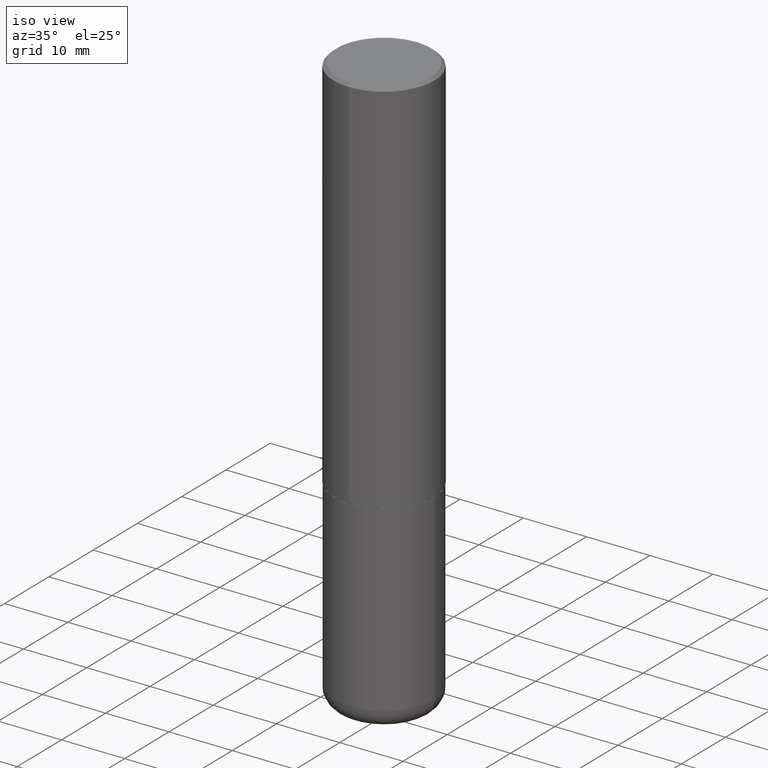
[diagram: clean part render]
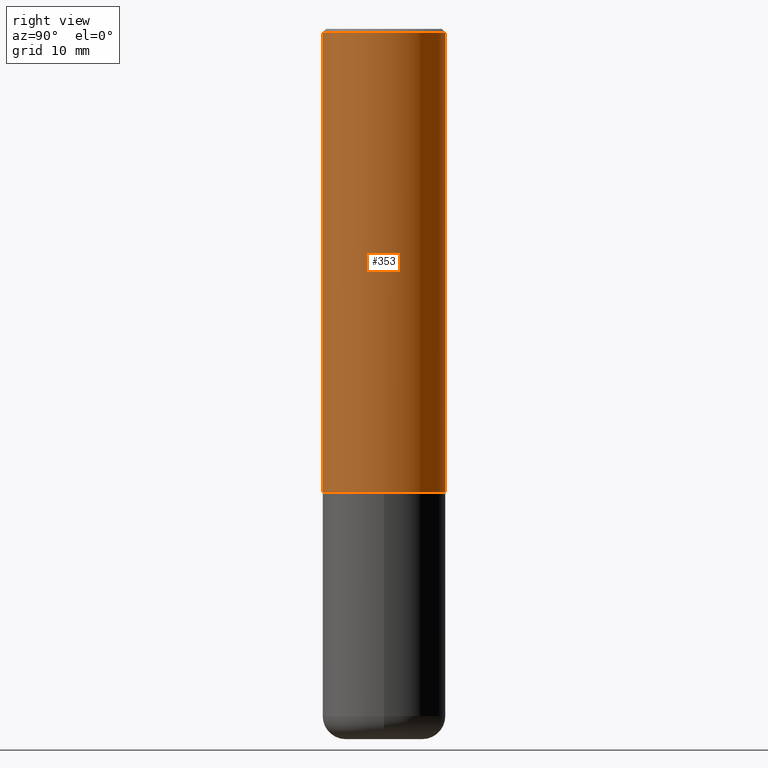
[diagram: tour spotlight — one face highlighted and labeled with its STEP entity id]
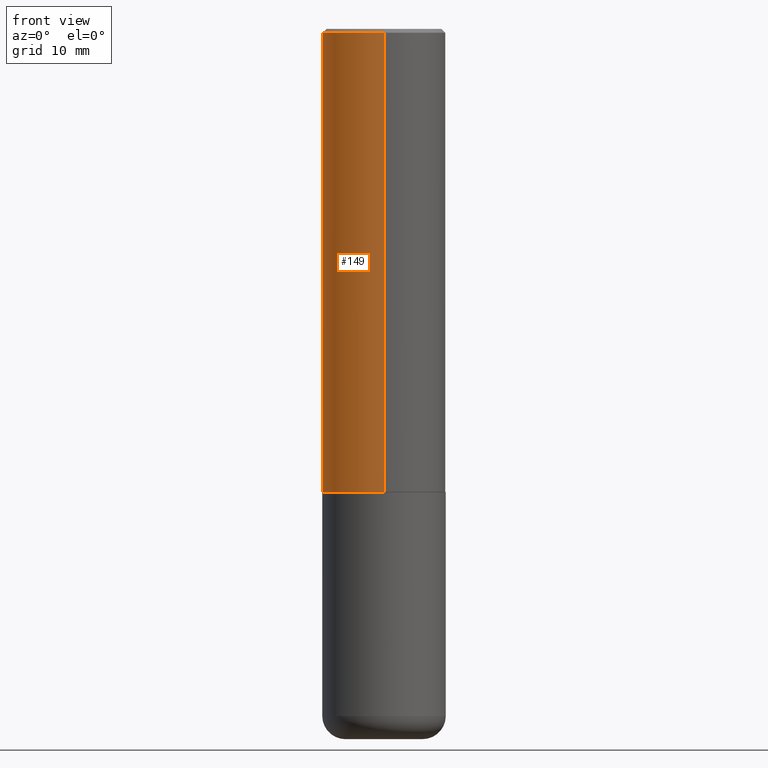
[diagram: tour spotlight — one face highlighted and labeled with its STEP entity id]
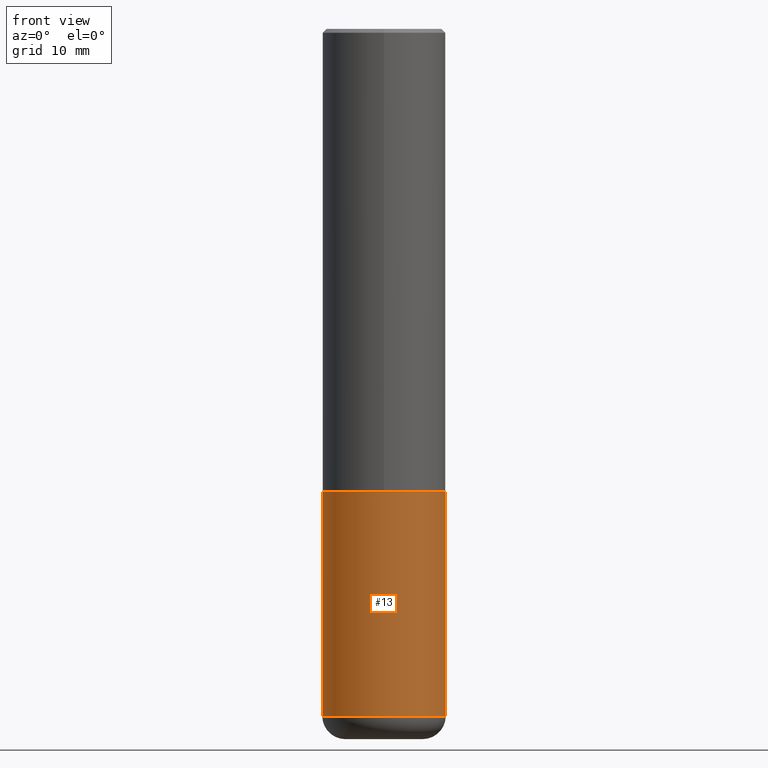
[diagram: tour spotlight — one face highlighted and labeled with its STEP entity id]
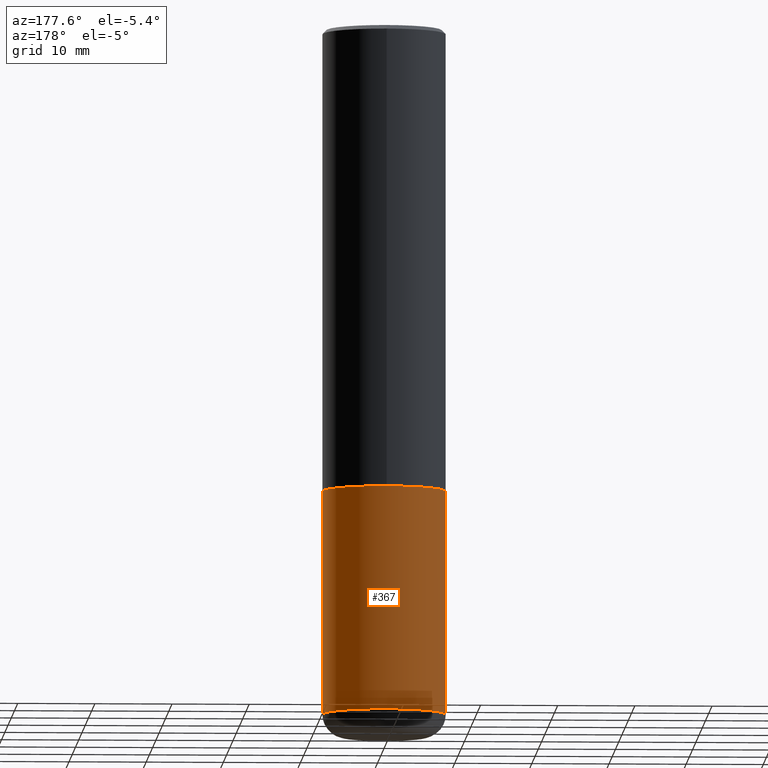
[diagram: tour spotlight — one face highlighted and labeled with its STEP entity id]
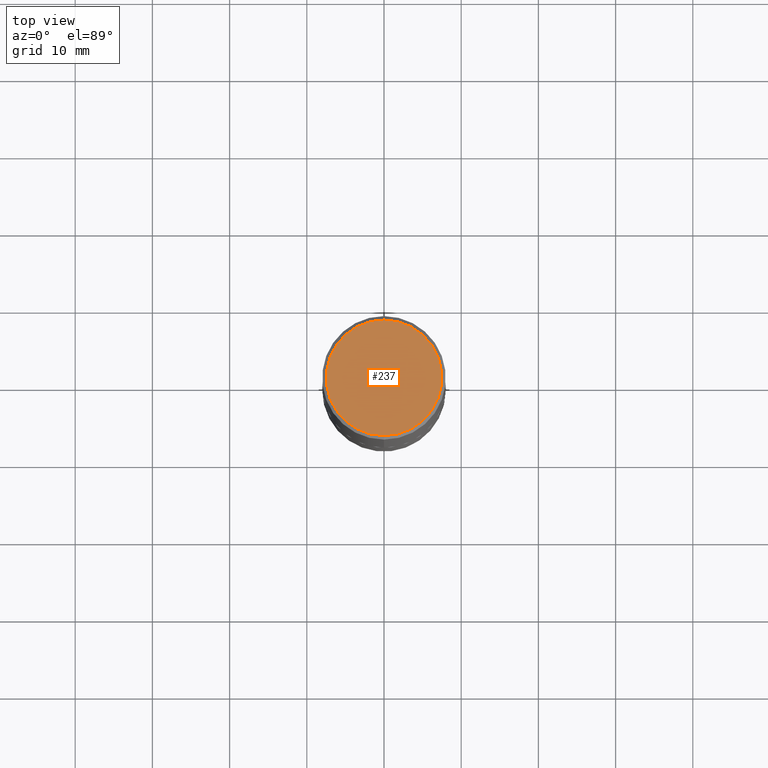
[diagram: tour spotlight — one face highlighted and labeled with its STEP entity id]
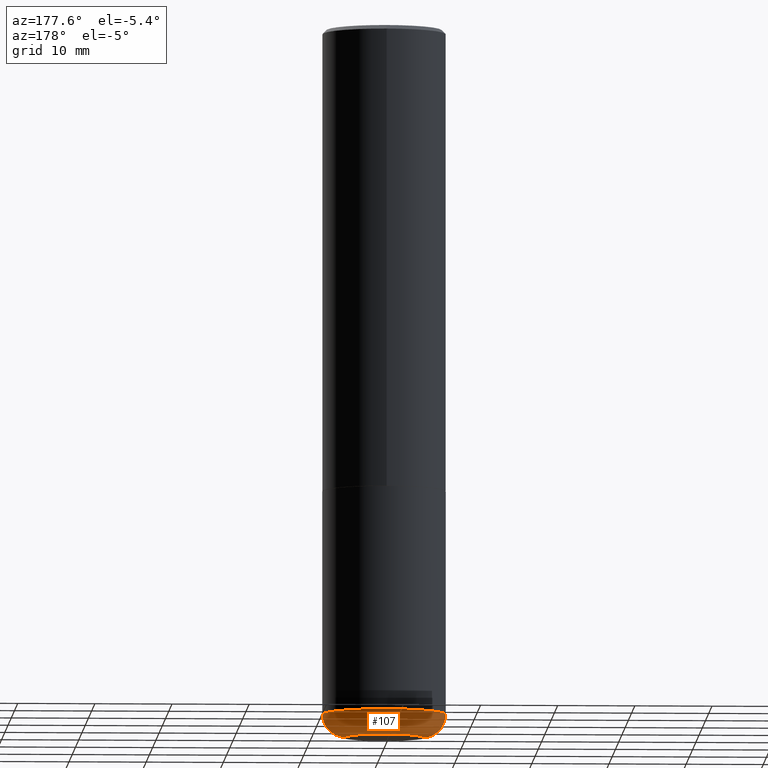
[diagram: tour spotlight — one face highlighted and labeled with its STEP entity id]
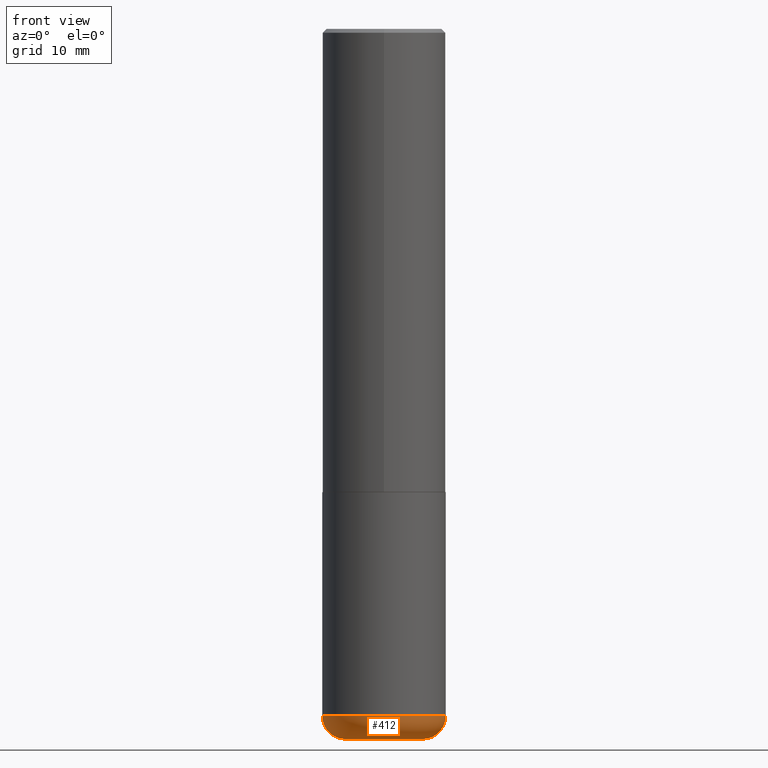
[diagram: tour spotlight — one face highlighted and labeled with its STEP entity id]
A machine part: a face-by-face anatomy tour. The part has 14 B-rep faces; the first image is the clean iso view, then the 7 largest visible faces are spotlighted one at a time (largest first), each with its STEP entity span.

Face 1 — right view, entity #353. In plain terms, the highlighted cylindrical surface (partial cylindrical patch) has radius 7.9997 mm, axis along (-0, 0, 1).
Definition (entity closure, byte-faithful):
#6 = CARTESIAN_POINT ( 'NONE',  ( -2.199284095337233467E-15, -0.3149500000000085564, -2.361199999999998411 ) ) ;
#28 = VERTEX_POINT ( 'NONE', #371 ) ;
#42 = ORIENTED_EDGE ( 'NONE', *, *, #79, .F. ) ;
#44 = ORIENTED_EDGE ( 'NONE', *, *, #268, .T. ) ;
#53 = CIRCLE ( 'NONE', #151, 0.3149500000000002853 ) ;
#79 = EDGE_CURVE ( 'NONE', #225, #302, #194, .T. ) ;
#81 = ORIENTED_EDGE ( 'NONE', *, *, #184, .F. ) ;
#114 = LINE ( 'NONE', #294, #281 ) ;
#122 = CARTESIAN_POINT ( 'NONE',  ( 2.237854346276435985E-15, 0.3149500000000001743, -1.100667708753224483E-15 ) ) ;
#123 = FACE_OUTER_BOUND ( 'NONE', #161, .T. ) ;
#150 = DIRECTION ( 'NONE',  ( -2.443194745834749563E-29, 3.494737922696377105E-15, 1.000000000000000000 ) ) ;
#151 = AXIS2_PLACEMENT_3D ( 'NONE', #391, #355, #203 ) ;
#161 = EDGE_LOOP ( 'NONE', ( #44, #167, #42, #81 ) ) ;
#167 = ORIENTED_EDGE ( 'NONE', *, *, #373, .T. ) ;
#184 = EDGE_CURVE ( 'NONE', #267, #225, #114, .T. ) ;
#193 = DIRECTION ( 'NONE',  ( -6.982962677686265922E-15, -1.000000000000000000, 3.496670018878889100E-15 ) ) ;
#194 = CIRCLE ( 'NONE', #368, 0.3149500000000000077 ) ;
#203 = DIRECTION ( 'NONE',  ( -6.982962677686265922E-15, -1.000000000000000000, 3.469564049740290009E-15 ) ) ;
#209 = LINE ( 'NONE', #122, #410 ) ;
#217 = DIRECTION ( 'NONE',  ( -2.443194745834749283E-29, 3.494737922696377105E-15, 1.000000000000000000 ) ) ;
#225 = VERTEX_POINT ( 'NONE', #330 ) ;
#239 = DIRECTION ( 'NONE',  ( -2.443194745834749283E-29, 3.494737922696377105E-15, 1.000000000000000000 ) ) ;
#247 = CARTESIAN_POINT ( 'NONE',  ( 0.000000000000000000, 0.000000000000000000, 0.000000000000000000 ) ) ;
#267 = VERTEX_POINT ( 'NONE', #6 ) ;
#268 = EDGE_CURVE ( 'NONE', #267, #28, #53, .T. ) ;
#281 = VECTOR ( 'NONE', #388, 39.37007874015748143 ) ;
#294 = CARTESIAN_POINT ( 'NONE',  ( -2.199284095337290265E-15, -0.3149500000000001743, 1.100667708753224483E-15 ) ) ;
#302 = VERTEX_POINT ( 'NONE', #338 ) ;
#330 = CARTESIAN_POINT ( 'NONE',  ( -2.160713844398143363E-15, -0.3149500000000000632, -0.01999999999999896652 ) ) ;
#332 = AXIS2_PLACEMENT_3D ( 'NONE', #247, #239, #374 ) ;
#333 = CYLINDRICAL_SURFACE ( 'NONE', #332, 0.3149500000000001743 ) ;
#338 = CARTESIAN_POINT ( 'NONE',  ( 2.199284095337289871E-15, 0.3149499999999999522, -0.02000000000000116962 ) ) ;
#353 = ADVANCED_FACE ( 'NONE', ( #123 ), #333, .T. ) ;
#355 = DIRECTION ( 'NONE',  ( -2.443194745834749283E-29, 3.494737922696377105E-15, 1.000000000000000000 ) ) ;
#368 = AXIS2_PLACEMENT_3D ( 'NONE', #380, #217, #193 ) ;
#371 = CARTESIAN_POINT ( 'NONE',  ( 2.237854346276465567E-15, 0.3149499999999920141, -2.361200000000000632 ) ) ;
#373 = EDGE_CURVE ( 'NONE', #28, #302, #209, .T. ) ;
#374 = DIRECTION ( 'NONE',  ( -6.982962677686264344E-15, -1.000000000000000000, 3.494737922696376711E-15 ) ) ;
#380 = CARTESIAN_POINT ( 'NONE',  ( 4.886389491669515207E-31, -6.989475845392777581E-17, -0.02000000000000006981 ) ) ;
#388 = DIRECTION ( 'NONE',  ( -2.443194745834749563E-29, 3.494737922696377105E-15, 1.000000000000000000 ) ) ;
#391 = CARTESIAN_POINT ( 'NONE',  ( 5.768871433865010313E-29, -8.251775183070685478E-15, -2.361199999999999743 ) ) ;
#410 = VECTOR ( 'NONE', #150, 39.37007874015748143 ) ;

Face 2 — front view, entity #149. In plain terms, the highlighted cylindrical surface (partial cylindrical patch) has radius 7.9997 mm, axis along (-0, 0, 1).
Definition (entity closure, byte-faithful):
#6 = CARTESIAN_POINT ( 'NONE',  ( -2.199284095337233467E-15, -0.3149500000000085564, -2.361199999999998411 ) ) ;
#28 = VERTEX_POINT ( 'NONE', #371 ) ;
#35 = DIRECTION ( 'NONE',  ( -2.443194745834749283E-29, 3.494737922696377105E-15, 1.000000000000000000 ) ) ;
#43 = CIRCLE ( 'NONE', #310, 0.3149500000000000077 ) ;
#49 = ORIENTED_EDGE ( 'NONE', *, *, #184, .T. ) ;
#56 = ORIENTED_EDGE ( 'NONE', *, *, #92, .T. ) ;
#64 = DIRECTION ( 'NONE',  ( -6.982962677686265922E-15, -1.000000000000000000, 3.496670018878889100E-15 ) ) ;
#69 = FACE_OUTER_BOUND ( 'NONE', #320, .T. ) ;
#92 = EDGE_CURVE ( 'NONE', #28, #267, #377, .T. ) ;
#105 = AXIS2_PLACEMENT_3D ( 'NONE', #287, #200, #343 ) ;
#114 = LINE ( 'NONE', #294, #281 ) ;
#122 = CARTESIAN_POINT ( 'NONE',  ( 2.237854346276435985E-15, 0.3149500000000001743, -1.100667708753224483E-15 ) ) ;
#134 = CARTESIAN_POINT ( 'NONE',  ( 0.000000000000000000, 0.000000000000000000, 0.000000000000000000 ) ) ;
#139 = ORIENTED_EDGE ( 'NONE', *, *, #145, .F. ) ;
#145 = EDGE_CURVE ( 'NONE', #302, #225, #43, .T. ) ;
#149 = ADVANCED_FACE ( 'NONE', ( #69 ), #416, .T. ) ;
#150 = DIRECTION ( 'NONE',  ( -2.443194745834749563E-29, 3.494737922696377105E-15, 1.000000000000000000 ) ) ;
#154 = ORIENTED_EDGE ( 'NONE', *, *, #373, .F. ) ;
#166 = DIRECTION ( 'NONE',  ( -2.443194745834749283E-29, 3.494737922696377105E-15, 1.000000000000000000 ) ) ;
#184 = EDGE_CURVE ( 'NONE', #267, #225, #114, .T. ) ;
#200 = DIRECTION ( 'NONE',  ( -2.443194745834749283E-29, 3.494737922696377105E-15, 1.000000000000000000 ) ) ;
#209 = LINE ( 'NONE', #122, #410 ) ;
#225 = VERTEX_POINT ( 'NONE', #330 ) ;
#267 = VERTEX_POINT ( 'NONE', #6 ) ;
#281 = VECTOR ( 'NONE', #388, 39.37007874015748143 ) ;
#287 = CARTESIAN_POINT ( 'NONE',  ( 5.768871433865010313E-29, -8.251775183070685478E-15, -2.361199999999999743 ) ) ;
#294 = CARTESIAN_POINT ( 'NONE',  ( -2.199284095337290265E-15, -0.3149500000000001743, 1.100667708753224483E-15 ) ) ;
#302 = VERTEX_POINT ( 'NONE', #338 ) ;
#310 = AXIS2_PLACEMENT_3D ( 'NONE', #317, #166, #64 ) ;
#317 = CARTESIAN_POINT ( 'NONE',  ( 4.886389491669515207E-31, -6.989475845392777581E-17, -0.02000000000000006981 ) ) ;
#320 = EDGE_LOOP ( 'NONE', ( #154, #56, #49, #139 ) ) ;
#330 = CARTESIAN_POINT ( 'NONE',  ( -2.160713844398143363E-15, -0.3149500000000000632, -0.01999999999999896652 ) ) ;
#338 = CARTESIAN_POINT ( 'NONE',  ( 2.199284095337289871E-15, 0.3149499999999999522, -0.02000000000000116962 ) ) ;
#343 = DIRECTION ( 'NONE',  ( -6.982962677686265922E-15, -1.000000000000000000, 3.469564049740290009E-15 ) ) ;
#371 = CARTESIAN_POINT ( 'NONE',  ( 2.237854346276465567E-15, 0.3149499999999920141, -2.361200000000000632 ) ) ;
#373 = EDGE_CURVE ( 'NONE', #28, #302, #209, .T. ) ;
#377 = CIRCLE ( 'NONE', #105, 0.3149500000000002853 ) ;
#384 = DIRECTION ( 'NONE',  ( -6.982962677686264344E-15, -1.000000000000000000, 3.494737922696376711E-15 ) ) ;
#385 = AXIS2_PLACEMENT_3D ( 'NONE', #134, #35, #384 ) ;
#388 = DIRECTION ( 'NONE',  ( -2.443194745834749563E-29, 3.494737922696377105E-15, 1.000000000000000000 ) ) ;
#410 = VECTOR ( 'NONE', #150, 39.37007874015748143 ) ;
#416 = CYLINDRICAL_SURFACE ( 'NONE', #385, 0.3149500000000001743 ) ;

Face 3 — front view, entity #13. In plain terms, the highlighted cylindrical surface (partial cylindrical patch) has radius 7.9997 mm, axis along (-0, 0, 1).
Definition (entity closure, byte-faithful):
#1 = CARTESIAN_POINT ( 'NONE',  ( 0.3149500000000000077, -2.199284095337289871E-15, 1.535751875536930130E-29 ) ) ;
#13 = ADVANCED_FACE ( 'NONE', ( #273 ), #25, .T. ) ;
#25 = CYLINDRICAL_SURFACE ( 'NONE', #126, 0.3149500000000000077 ) ;
#31 = EDGE_LOOP ( 'NONE', ( #135, #394, #318, #236 ) ) ;
#40 = EDGE_CURVE ( 'NONE', #266, #54, #230, .T. ) ;
#45 = CARTESIAN_POINT ( 'NONE',  ( 8.568678149992099474E-29, -1.223380146317249786E-14, -3.503899999999999793 ) ) ;
#54 = VERTEX_POINT ( 'NONE', #256 ) ;
#58 = EDGE_CURVE ( 'NONE', #207, #54, #378, .T. ) ;
#59 = DIRECTION ( 'NONE',  ( -2.445468806185136877E-29, 3.491481338843145188E-15, 1.000000000000000000 ) ) ;
#75 = EDGE_CURVE ( 'NONE', #103, #266, #98, .T. ) ;
#89 = CARTESIAN_POINT ( 'NONE',  ( 0.000000000000000000, 0.000000000000000000, 0.000000000000000000 ) ) ;
#98 = LINE ( 'NONE', #133, #178 ) ;
#103 = VERTEX_POINT ( 'NONE', #316 ) ;
#126 = AXIS2_PLACEMENT_3D ( 'NONE', #89, #365, #248 ) ;
#133 = CARTESIAN_POINT ( 'NONE',  ( -0.3149500000000000077, 2.237854346276435590E-15, -1.549218606675782676E-29 ) ) ;
#135 = ORIENTED_EDGE ( 'NONE', *, *, #75, .F. ) ;
#141 = CARTESIAN_POINT ( 'NONE',  ( 0.3149500000000000077, -1.443308555850978615E-14, -3.503899999999999793 ) ) ;
#178 = VECTOR ( 'NONE', #59, 39.37007874015748143 ) ;
#182 = VECTOR ( 'NONE', #224, 39.37007874015748143 ) ;
#189 = CIRCLE ( 'NONE', #291, 0.3149500000000000077 ) ;
#207 = VERTEX_POINT ( 'NONE', #141 ) ;
#214 = EDGE_CURVE ( 'NONE', #103, #207, #189, .T. ) ;
#224 = DIRECTION ( 'NONE',  ( -2.445468806185136877E-29, 3.491481338843145188E-15, 1.000000000000000000 ) ) ;
#230 = CIRCLE ( 'NONE', #327, 0.3149500000000000077 ) ;
#236 = ORIENTED_EDGE ( 'NONE', *, *, #40, .F. ) ;
#248 = DIRECTION ( 'NONE',  ( 1.000000000000000000, -6.982962677686266711E-15, 4.876176775795936353E-29 ) ) ;
#256 = CARTESIAN_POINT ( 'NONE',  ( 0.3149500000000000077, -1.044686131395256792E-14, -2.362199999999999633 ) ) ;
#261 = DIRECTION ( 'NONE',  ( -2.445468806185136597E-29, 3.491481338843145583E-15, 1.000000000000000000 ) ) ;
#266 = VERTEX_POINT ( 'NONE', #297 ) ;
#273 = FACE_OUTER_BOUND ( 'NONE', #31, .T. ) ;
#291 = AXIS2_PLACEMENT_3D ( 'NONE', #45, #261, #299 ) ;
#297 = CARTESIAN_POINT ( 'NONE',  ( -0.3149500000000000077, -8.002834994617451969E-15, -2.362199999999999633 ) ) ;
#299 = DIRECTION ( 'NONE',  ( 1.000000000000000000, -6.982962677686263555E-15, 0.000000000000000000 ) ) ;
#316 = CARTESIAN_POINT ( 'NONE',  ( -0.3149500000000000077, -9.995947116896063452E-15, -3.503899999999999793 ) ) ;
#318 = ORIENTED_EDGE ( 'NONE', *, *, #58, .T. ) ;
#322 = DIRECTION ( 'NONE',  ( -2.445468806185136597E-29, 3.491481338843145583E-15, 1.000000000000000000 ) ) ;
#327 = AXIS2_PLACEMENT_3D ( 'NONE', #345, #322, #413 ) ;
#345 = CARTESIAN_POINT ( 'NONE',  ( 5.776686413970529753E-29, -8.247577218615278049E-15, -2.362199999999999633 ) ) ;
#365 = DIRECTION ( 'NONE',  ( -2.445468806185136597E-29, 3.491481338843145583E-15, 1.000000000000000000 ) ) ;
#378 = LINE ( 'NONE', #1, #182 ) ;
#394 = ORIENTED_EDGE ( 'NONE', *, *, #214, .T. ) ;
#413 = DIRECTION ( 'NONE',  ( 1.000000000000000000, -6.982962677686266711E-15, 0.000000000000000000 ) ) ;

Face 4 — auxiliary view, entity #367. In plain terms, the highlighted cylindrical surface (partial cylindrical patch) has radius 7.9997 mm, axis along (-0, 0, 1).
Definition (entity closure, byte-faithful):
#1 = CARTESIAN_POINT ( 'NONE',  ( 0.3149500000000000077, -2.199284095337289871E-15, 1.535751875536930130E-29 ) ) ;
#47 = AXIS2_PLACEMENT_3D ( 'NONE', #137, #361, #176 ) ;
#52 = CARTESIAN_POINT ( 'NONE',  ( 0.000000000000000000, 0.000000000000000000, 0.000000000000000000 ) ) ;
#54 = VERTEX_POINT ( 'NONE', #256 ) ;
#58 = EDGE_CURVE ( 'NONE', #207, #54, #378, .T. ) ;
#59 = DIRECTION ( 'NONE',  ( -2.445468806185136877E-29, 3.491481338843145188E-15, 1.000000000000000000 ) ) ;
#67 = ORIENTED_EDGE ( 'NONE', *, *, #58, .F. ) ;
#75 = EDGE_CURVE ( 'NONE', #103, #266, #98, .T. ) ;
#83 = FACE_OUTER_BOUND ( 'NONE', #216, .T. ) ;
#86 = DIRECTION ( 'NONE',  ( 1.000000000000000000, -6.982962677686266711E-15, 4.876176775795936353E-29 ) ) ;
#98 = LINE ( 'NONE', #133, #178 ) ;
#103 = VERTEX_POINT ( 'NONE', #316 ) ;
#106 = CARTESIAN_POINT ( 'NONE',  ( 8.568678149992099474E-29, -1.223380146317249786E-14, -3.503899999999999793 ) ) ;
#133 = CARTESIAN_POINT ( 'NONE',  ( -0.3149500000000000077, 2.237854346276435590E-15, -1.549218606675782676E-29 ) ) ;
#137 = CARTESIAN_POINT ( 'NONE',  ( 5.776686413970529753E-29, -8.247577218615278049E-15, -2.362199999999999633 ) ) ;
#141 = CARTESIAN_POINT ( 'NONE',  ( 0.3149500000000000077, -1.443308555850978615E-14, -3.503899999999999793 ) ) ;
#158 = EDGE_CURVE ( 'NONE', #207, #103, #347, .T. ) ;
#168 = ORIENTED_EDGE ( 'NONE', *, *, #158, .T. ) ;
#170 = DIRECTION ( 'NONE',  ( -2.445468806185136597E-29, 3.491481338843145583E-15, 1.000000000000000000 ) ) ;
#173 = EDGE_CURVE ( 'NONE', #54, #266, #257, .T. ) ;
#176 = DIRECTION ( 'NONE',  ( 1.000000000000000000, -6.982962677686266711E-15, 0.000000000000000000 ) ) ;
#178 = VECTOR ( 'NONE', #59, 39.37007874015748143 ) ;
#182 = VECTOR ( 'NONE', #224, 39.37007874015748143 ) ;
#183 = AXIS2_PLACEMENT_3D ( 'NONE', #52, #275, #86 ) ;
#206 = AXIS2_PLACEMENT_3D ( 'NONE', #106, #170, #289 ) ;
#207 = VERTEX_POINT ( 'NONE', #141 ) ;
#216 = EDGE_LOOP ( 'NONE', ( #168, #411, #265, #67 ) ) ;
#224 = DIRECTION ( 'NONE',  ( -2.445468806185136877E-29, 3.491481338843145188E-15, 1.000000000000000000 ) ) ;
#256 = CARTESIAN_POINT ( 'NONE',  ( 0.3149500000000000077, -1.044686131395256792E-14, -2.362199999999999633 ) ) ;
#257 = CIRCLE ( 'NONE', #47, 0.3149500000000000077 ) ;
#265 = ORIENTED_EDGE ( 'NONE', *, *, #173, .F. ) ;
#266 = VERTEX_POINT ( 'NONE', #297 ) ;
#275 = DIRECTION ( 'NONE',  ( -2.445468806185136597E-29, 3.491481338843145583E-15, 1.000000000000000000 ) ) ;
#289 = DIRECTION ( 'NONE',  ( 1.000000000000000000, -6.982962677686263555E-15, 0.000000000000000000 ) ) ;
#297 = CARTESIAN_POINT ( 'NONE',  ( -0.3149500000000000077, -8.002834994617451969E-15, -2.362199999999999633 ) ) ;
#316 = CARTESIAN_POINT ( 'NONE',  ( -0.3149500000000000077, -9.995947116896063452E-15, -3.503899999999999793 ) ) ;
#347 = CIRCLE ( 'NONE', #206, 0.3149500000000000077 ) ;
#361 = DIRECTION ( 'NONE',  ( -2.445468806185136597E-29, 3.491481338843145583E-15, 1.000000000000000000 ) ) ;
#367 = ADVANCED_FACE ( 'NONE', ( #83 ), #369, .T. ) ;
#369 = CYLINDRICAL_SURFACE ( 'NONE', #183, 0.3149500000000000077 ) ;
#378 = LINE ( 'NONE', #1, #182 ) ;
#411 = ORIENTED_EDGE ( 'NONE', *, *, #75, .T. ) ;

Face 5 — top view, entity #237. In plain terms, the highlighted planar face has unit normal (0, -0, -1).
Definition (entity closure, byte-faithful):
#15 = DIRECTION ( 'NONE',  ( -6.982962677686265922E-15, -1.000000000000000000, 3.494737922696377105E-15 ) ) ;
#39 = DIRECTION ( 'NONE',  ( 6.982962677686265922E-15, 1.000000000000000000, -3.494737922696377105E-15 ) ) ;
#48 = DIRECTION ( 'NONE',  ( -2.443194745834749283E-29, 3.494737922696377105E-15, 1.000000000000000000 ) ) ;
#74 = PLANE ( 'NONE',  #171 ) ;
#76 = EDGE_LOOP ( 'NONE', ( #402, #381 ) ) ;
#93 = CIRCLE ( 'NONE', #165, 0.2949499999999997679 ) ;
#111 = AXIS2_PLACEMENT_3D ( 'NONE', #210, #153, #15 ) ;
#118 = CARTESIAN_POINT ( 'NONE',  ( -6.593616195672795662E-45, 9.431487443236869670E-31, 2.698768162838366015E-16 ) ) ;
#153 = DIRECTION ( 'NONE',  ( -2.443194745834749283E-29, 3.494737922696377105E-15, 1.000000000000000000 ) ) ;
#165 = AXIS2_PLACEMENT_3D ( 'NONE', #118, #48, #364 ) ;
#171 = AXIS2_PLACEMENT_3D ( 'NONE', #201, #326, #39 ) ;
#201 = CARTESIAN_POINT ( 'NONE',  ( 2.059624841783562486E-15, 0.2949499999999997679, -8.958345421573771736E-16 ) ) ;
#204 = VERTEX_POINT ( 'NONE', #301 ) ;
#210 = CARTESIAN_POINT ( 'NONE',  ( -6.593616195672795662E-45, 9.431487443236869670E-31, 2.698768162838366015E-16 ) ) ;
#234 = VERTEX_POINT ( 'NONE', #395 ) ;
#237 = ADVANCED_FACE ( 'NONE', ( #354 ), #74, .F. ) ;
#286 = EDGE_CURVE ( 'NONE', #204, #234, #359, .T. ) ;
#301 = CARTESIAN_POINT ( 'NONE',  ( -2.092108864420427242E-15, -0.2949499999999997679, 1.300649766583132199E-15 ) ) ;
#326 = DIRECTION ( 'NONE',  ( 2.443194745834749003E-29, -3.494737922696377105E-15, -1.000000000000000000 ) ) ;
#354 = FACE_OUTER_BOUND ( 'NONE', #76, .T. ) ;
#356 = EDGE_CURVE ( 'NONE', #234, #204, #93, .T. ) ;
#359 = CIRCLE ( 'NONE', #111, 0.2949499999999997679 ) ;
#364 = DIRECTION ( 'NONE',  ( -6.982962677686265922E-15, -1.000000000000000000, 3.494737922696377105E-15 ) ) ;
#381 = ORIENTED_EDGE ( 'NONE', *, *, #286, .T. ) ;
#395 = CARTESIAN_POINT ( 'NONE',  ( 2.129454468560426178E-15, 0.2949499999999997679, -7.608961340154590947E-16 ) ) ;
#402 = ORIENTED_EDGE ( 'NONE', *, *, #356, .T. ) ;

Face 6 — auxiliary view, entity #107. In plain terms, the highlighted toroidal blend (fillet) surface has major radius 5 mm and minor (blend) radius 2.9997 mm.
Definition (entity closure, byte-faithful):
#4 = AXIS2_PLACEMENT_3D ( 'NONE', #401, #119, #241 ) ;
#10 = VERTEX_POINT ( 'NONE', #84 ) ;
#12 = CARTESIAN_POINT ( 'NONE',  ( 0.1968500000000000250, -1.360839766627503947E-14, -3.503899999999999793 ) ) ;
#27 = EDGE_CURVE ( 'NONE', #10, #103, #339, .T. ) ;
#29 = CIRCLE ( 'NONE', #95, 0.1180999999999999966 ) ;
#32 = ORIENTED_EDGE ( 'NONE', *, *, #27, .T. ) ;
#51 = ORIENTED_EDGE ( 'NONE', *, *, #358, .F. ) ;
#82 = DIRECTION ( 'NONE',  ( -6.982962677686266711E-15, -1.000000000000000000, 3.491481338843145583E-15 ) ) ;
#84 = CARTESIAN_POINT ( 'NONE',  ( -0.1968500000000000527, -1.062169457542108922E-14, -3.621999999999999886 ) ) ;
#95 = AXIS2_PLACEMENT_3D ( 'NONE', #12, #82, #152 ) ;
#103 = VERTEX_POINT ( 'NONE', #316 ) ;
#106 = CARTESIAN_POINT ( 'NONE',  ( 8.568678149992099474E-29, -1.223380146317249786E-14, -3.503899999999999793 ) ) ;
#107 = ADVANCED_FACE ( 'NONE', ( #382 ), #292, .T. ) ;
#115 = VERTEX_POINT ( 'NONE', #279 ) ;
#119 = DIRECTION ( 'NONE',  ( 7.105427357601001859E-15, 1.000000000000000000, -3.491481338843145583E-15 ) ) ;
#141 = CARTESIAN_POINT ( 'NONE',  ( 0.3149500000000000077, -1.443308555850978615E-14, -3.503899999999999793 ) ) ;
#148 = EDGE_LOOP ( 'NONE', ( #340, #32, #228, #51 ) ) ;
#152 = DIRECTION ( 'NONE',  ( 1.000000000000000000, -6.982962677686273021E-15, 0.000000000000000000 ) ) ;
#158 = EDGE_CURVE ( 'NONE', #207, #103, #347, .T. ) ;
#170 = DIRECTION ( 'NONE',  ( -2.445468806185136597E-29, 3.491481338843145583E-15, 1.000000000000000000 ) ) ;
#188 = DIRECTION ( 'NONE',  ( -2.445468806185136597E-29, 3.491481338843145583E-15, 1.000000000000000000 ) ) ;
#206 = AXIS2_PLACEMENT_3D ( 'NONE', #106, #170, #289 ) ;
#207 = VERTEX_POINT ( 'NONE', #141 ) ;
#228 = ORIENTED_EDGE ( 'NONE', *, *, #158, .F. ) ;
#235 = CIRCLE ( 'NONE', #269, 0.1968500000000000527 ) ;
#238 = CARTESIAN_POINT ( 'NONE',  ( 8.857488016002564476E-29, -1.264614540928987199E-14, -3.621999999999999886 ) ) ;
#241 = DIRECTION ( 'NONE',  ( -1.000000000000000000, 7.105427357601005014E-15, 0.000000000000000000 ) ) ;
#253 = DIRECTION ( 'NONE',  ( 1.000000000000000000, -6.982962677686263555E-15, 4.883557194083111780E-29 ) ) ;
#269 = AXIS2_PLACEMENT_3D ( 'NONE', #238, #188, #331 ) ;
#279 = CARTESIAN_POINT ( 'NONE',  ( 0.1968500000000000527, -1.402074161239241360E-14, -3.621999999999999886 ) ) ;
#289 = DIRECTION ( 'NONE',  ( 1.000000000000000000, -6.982962677686263555E-15, 0.000000000000000000 ) ) ;
#292 = TOROIDAL_SURFACE ( 'NONE', #324, 0.1968500000000000250, 0.1181000000000000105 ) ;
#295 = EDGE_CURVE ( 'NONE', #115, #10, #235, .T. ) ;
#316 = CARTESIAN_POINT ( 'NONE',  ( -0.3149500000000000077, -9.995947116896063452E-15, -3.503899999999999793 ) ) ;
#319 = DIRECTION ( 'NONE',  ( -2.445468806185136597E-29, 3.491481338843145583E-15, 1.000000000000000000 ) ) ;
#324 = AXIS2_PLACEMENT_3D ( 'NONE', #409, #319, #253 ) ;
#331 = DIRECTION ( 'NONE',  ( 1.000000000000000000, -6.982962677686266711E-15, 0.000000000000000000 ) ) ;
#339 = CIRCLE ( 'NONE', #4, 0.1180999999999999966 ) ;
#340 = ORIENTED_EDGE ( 'NONE', *, *, #295, .T. ) ;
#347 = CIRCLE ( 'NONE', #206, 0.3149500000000000077 ) ;
#358 = EDGE_CURVE ( 'NONE', #115, #207, #29, .T. ) ;
#382 = FACE_OUTER_BOUND ( 'NONE', #148, .T. ) ;
#401 = CARTESIAN_POINT ( 'NONE',  ( -0.1968500000000000250, -1.083509808782873928E-14, -3.503899999999999793 ) ) ;
#409 = CARTESIAN_POINT ( 'NONE',  ( 8.568678149992099474E-29, -1.223380146317249786E-14, -3.503899999999999793 ) ) ;

Face 7 — front view, entity #412. In plain terms, the highlighted toroidal blend (fillet) surface has major radius 5 mm and minor (blend) radius 2.9997 mm.
Definition (entity closure, byte-faithful):
#4 = AXIS2_PLACEMENT_3D ( 'NONE', #401, #119, #241 ) ;
#10 = VERTEX_POINT ( 'NONE', #84 ) ;
#12 = CARTESIAN_POINT ( 'NONE',  ( 0.1968500000000000250, -1.360839766627503947E-14, -3.503899999999999793 ) ) ;
#27 = EDGE_CURVE ( 'NONE', #10, #103, #339, .T. ) ;
#29 = CIRCLE ( 'NONE', #95, 0.1180999999999999966 ) ;
#33 = EDGE_CURVE ( 'NONE', #10, #115, #397, .T. ) ;
#37 = DIRECTION ( 'NONE',  ( 1.000000000000000000, -6.982962677686266711E-15, 0.000000000000000000 ) ) ;
#45 = CARTESIAN_POINT ( 'NONE',  ( 8.568678149992099474E-29, -1.223380146317249786E-14, -3.503899999999999793 ) ) ;
#72 = TOROIDAL_SURFACE ( 'NONE', #325, 0.1968500000000000250, 0.1181000000000000105 ) ;
#82 = DIRECTION ( 'NONE',  ( -6.982962677686266711E-15, -1.000000000000000000, 3.491481338843145583E-15 ) ) ;
#84 = CARTESIAN_POINT ( 'NONE',  ( -0.1968500000000000527, -1.062169457542108922E-14, -3.621999999999999886 ) ) ;
#95 = AXIS2_PLACEMENT_3D ( 'NONE', #12, #82, #152 ) ;
#103 = VERTEX_POINT ( 'NONE', #316 ) ;
#104 = CARTESIAN_POINT ( 'NONE',  ( 8.857488016002564476E-29, -1.264614540928987199E-14, -3.621999999999999886 ) ) ;
#115 = VERTEX_POINT ( 'NONE', #279 ) ;
#119 = DIRECTION ( 'NONE',  ( 7.105427357601001859E-15, 1.000000000000000000, -3.491481338843145583E-15 ) ) ;
#121 = ORIENTED_EDGE ( 'NONE', *, *, #214, .F. ) ;
#125 = DIRECTION ( 'NONE',  ( -2.445468806185136597E-29, 3.491481338843145583E-15, 1.000000000000000000 ) ) ;
#141 = CARTESIAN_POINT ( 'NONE',  ( 0.3149500000000000077, -1.443308555850978615E-14, -3.503899999999999793 ) ) ;
#152 = DIRECTION ( 'NONE',  ( 1.000000000000000000, -6.982962677686273021E-15, 0.000000000000000000 ) ) ;
#181 = ORIENTED_EDGE ( 'NONE', *, *, #358, .T. ) ;
#189 = CIRCLE ( 'NONE', #291, 0.3149500000000000077 ) ;
#205 = EDGE_LOOP ( 'NONE', ( #386, #418, #181, #121 ) ) ;
#207 = VERTEX_POINT ( 'NONE', #141 ) ;
#214 = EDGE_CURVE ( 'NONE', #103, #207, #189, .T. ) ;
#241 = DIRECTION ( 'NONE',  ( -1.000000000000000000, 7.105427357601005014E-15, 0.000000000000000000 ) ) ;
#261 = DIRECTION ( 'NONE',  ( -2.445468806185136597E-29, 3.491481338843145583E-15, 1.000000000000000000 ) ) ;
#271 = DIRECTION ( 'NONE',  ( 1.000000000000000000, -6.982962677686263555E-15, 4.883557194083111780E-29 ) ) ;
#272 = FACE_OUTER_BOUND ( 'NONE', #205, .T. ) ;
#279 = CARTESIAN_POINT ( 'NONE',  ( 0.1968500000000000527, -1.402074161239241360E-14, -3.621999999999999886 ) ) ;
#291 = AXIS2_PLACEMENT_3D ( 'NONE', #45, #261, #299 ) ;
#299 = DIRECTION ( 'NONE',  ( 1.000000000000000000, -6.982962677686263555E-15, 0.000000000000000000 ) ) ;
#304 = DIRECTION ( 'NONE',  ( -2.445468806185136597E-29, 3.491481338843145583E-15, 1.000000000000000000 ) ) ;
#316 = CARTESIAN_POINT ( 'NONE',  ( -0.3149500000000000077, -9.995947116896063452E-15, -3.503899999999999793 ) ) ;
#325 = AXIS2_PLACEMENT_3D ( 'NONE', #400, #304, #271 ) ;
#339 = CIRCLE ( 'NONE', #4, 0.1180999999999999966 ) ;
#358 = EDGE_CURVE ( 'NONE', #115, #207, #29, .T. ) ;
#386 = ORIENTED_EDGE ( 'NONE', *, *, #27, .F. ) ;
#397 = CIRCLE ( 'NONE', #403, 0.1968500000000000527 ) ;
#400 = CARTESIAN_POINT ( 'NONE',  ( 8.568678149992099474E-29, -1.223380146317249786E-14, -3.503899999999999793 ) ) ;
#401 = CARTESIAN_POINT ( 'NONE',  ( -0.1968500000000000250, -1.083509808782873928E-14, -3.503899999999999793 ) ) ;
#403 = AXIS2_PLACEMENT_3D ( 'NONE', #104, #125, #37 ) ;
#412 = ADVANCED_FACE ( 'NONE', ( #272 ), #72, .T. ) ;
#418 = ORIENTED_EDGE ( 'NONE', *, *, #33, .T. ) ;